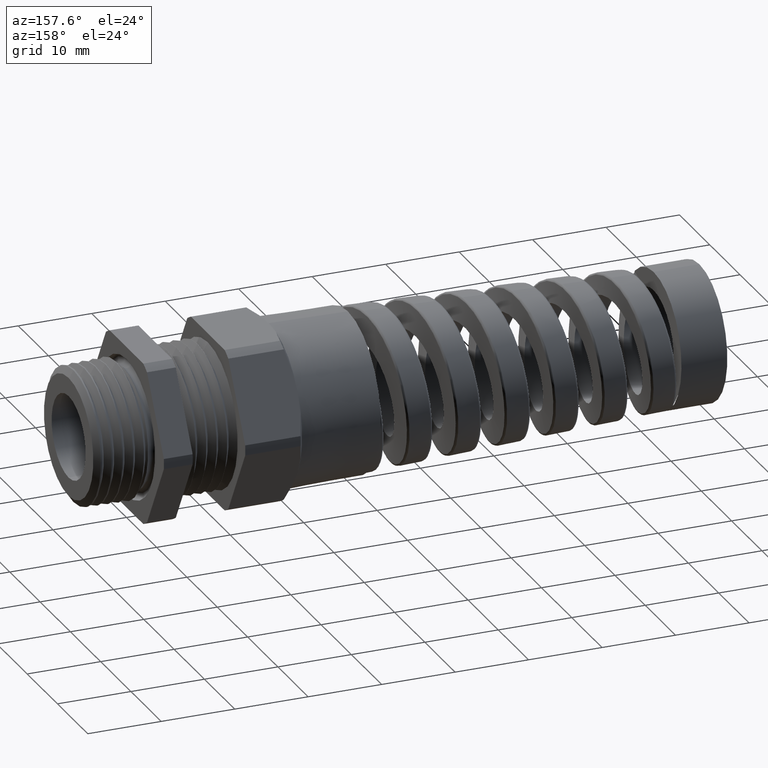
[diagram: clean part render]
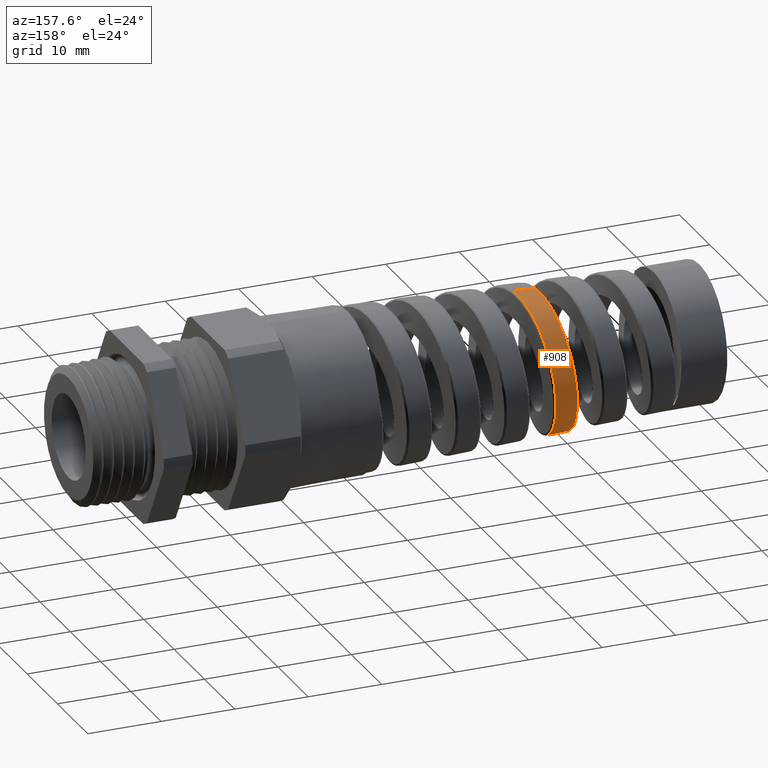
[diagram: same view with one face highlighted and labeled with its STEP entity id]
A machine part, auxiliary view. The second image highlights one B-rep face of the part: STEP entity #908.
In plain terms, the highlighted conical surface has half-angle 2.001 deg.
Its self-contained STEP definition (entity closure, byte-faithful):
#849 = EDGE_CURVE ( 'NONE', #896, #890, #2699, .T. ) ;
#850 = ORIENTED_EDGE ( 'NONE', *, *, #849, .T. ) ;
#870 = ORIENTED_EDGE ( 'NONE', *, *, #959, .F. ) ;
#890 = VERTEX_POINT ( 'NONE', #2846 ) ;
#896 = VERTEX_POINT ( 'NONE', #2843 ) ;
#897 = VERTEX_POINT ( 'NONE', #2842 ) ;
#899 = EDGE_CURVE ( 'NONE', #897, #896, #2954, .T. ) ;
#900 = ORIENTED_EDGE ( 'NONE', *, *, #902, .T. ) ;
#902 = EDGE_CURVE ( 'NONE', #903, #897, #2949, .T. ) ;
#903 = VERTEX_POINT ( 'NONE', #2950 ) ;
#905 = EDGE_LOOP ( 'NONE', ( #900, #906, #850, #870 ) ) ;
#906 = ORIENTED_EDGE ( 'NONE', *, *, #899, .T. ) ;
#908 = ADVANCED_FACE ( 'NONE', ( #2975 ), #2973, .T. ) ;
#959 = EDGE_CURVE ( 'NONE', #903, #890, #3322, .T. ) ;
#2679 = CARTESIAN_POINT ( 'NONE',  ( -2.121007796116298700, 0.3623087092068006900, 0.1381529577821191100 ) ) ;
#2680 = CARTESIAN_POINT ( 'NONE',  ( -2.116835432829257300, 0.3476543448961542100, 0.1734662431245847000 ) ) ;
#2681 = CARTESIAN_POINT ( 'NONE',  ( -2.114101119311537800, 0.3357250650330258500, 0.1957147596749278200 ) ) ;
#2682 = CARTESIAN_POINT ( 'NONE',  ( -2.109987203026395100, 0.3146917584746945500, 0.2271966723564998500 ) ) ;
#2683 = CARTESIAN_POINT ( 'NONE',  ( -2.108613653278699200, 0.3071537231754339900, 0.2373732500272804100 ) ) ;
#2684 = CARTESIAN_POINT ( 'NONE',  ( -2.105847040126177300, 0.2909951916960203900, 0.2570724937586757500 ) ) ;
#2685 = CARTESIAN_POINT ( 'NONE',  ( -2.104458460010300700, 0.2823954557052271700, 0.2665576844774127900 ) ) ;
#2686 = CARTESIAN_POINT ( 'NONE',  ( -2.100331283785412200, 0.2555327353306780000, 0.2934215898715395500 ) ) ;
#2687 = CARTESIAN_POINT ( 'NONE',  ( -2.097601851149142800, 0.2360523390537655500, 0.3094302028418458600 ) ) ;
#2688 = CARTESIAN_POINT ( 'NONE',  ( -2.093464130453706100, 0.2044792847250668500, 0.3305855466419839700 ) ) ;
#2689 = CARTESIAN_POINT ( 'NONE',  ( -2.092070176233148600, 0.1934975810188342400, 0.3371894019435693900 ) ) ;
#2690 = CARTESIAN_POINT ( 'NONE',  ( -2.089298822321016500, 0.1710559708426935800, 0.3492178418263165400 ) ) ;
#2691 = CARTESIAN_POINT ( 'NONE',  ( -2.087923819202658600, 0.1596173772018635900, 0.3546406859041521500 ) ) ;
#2692 = CARTESIAN_POINT ( 'NONE',  ( -2.083814437623425300, 0.1246671767106515400, 0.3691816318164830000 ) ) ;
#2693 = CARTESIAN_POINT ( 'NONE',  ( -2.081092583231444900, 0.1005274209826709000, 0.3765882877703819500 ) ) ;
#2694 = CARTESIAN_POINT ( 'NONE',  ( -2.076949348673752900, 0.06302813484859258500, 0.3841571769480763800 ) ) ;
#2695 = CARTESIAN_POINT ( 'NONE',  ( -2.075566717704021300, 0.05038979257522601500, 0.3860638650458663700 ) ) ;
#2696 = CARTESIAN_POINT ( 'NONE',  ( -2.072823917405715000, 0.02520647288547393100, 0.3886176109629270200 ) ) ;
#2697 = CARTESIAN_POINT ( 'NONE',  ( -2.071457720922029300, 0.01260682436461403400, 0.3892762368197000300 ) ) ;
#2698 = CARTESIAN_POINT ( 'NONE',  ( -2.070090085025433800, 5.533988843946447800E-017, 0.3893240102953847100 ) ) ;
#2699 = B_SPLINE_CURVE_WITH_KNOTS ( 'NONE', 3,
 ( #2698, #2697, #2696, #2695, #2694, #2693, #2692, #2691, #2690, #2689, #2688, #2687, #2686, #2685, #2684, #2683, #2682, #2681, #2680, #2679, #2752, #2751, #2750, #2749, #2748, #2747, #2746, #2745, #2744, #2743, #2742, #2741, #2740, #2739, #2738, #2737, #2736, #2735, #2734, #2733, #2732, #2731, #2730, #2729, #2728, #2727, #2726 ),
 .UNSPECIFIED., .F., .F.,
 ( 4, 2, 2, 2, 2, 2, 2, 2, 2, 2, 2, 1, 2, 2, 2, 2, 2, 2, 2, 2, 2, 2, 2, 4 ),
 ( 0.2183615001492772700, 0.2193405632607374500, 0.2203196263721976200, 0.2222777525951180100, 0.2232568157065781800, 0.2242358788180383900, 0.2261940050409587400, 0.2271730681524189400, 0.2281521312638791200, 0.2301102574867995000, 0.2310893205982596800, 0.2320683837097198600, 0.2330474468211800600, 0.2340265099326402400, 0.2359846361555605900, 0.2379427623784809700, 0.2399008886014013500, 0.2408799517128615300, 0.2418590148243217100, 0.2438171410472420900, 0.2457752672701624700, 0.2467543303816226700, 0.2477333934930828500, 0.2496915197160032300 ),
 .UNSPECIFIED. ) ;
#2726 = CARTESIAN_POINT ( 'NONE',  ( -2.202683457276038300, -3.405459396889542900E-013, -0.3846923343786152700 ) ) ;
#2727 = CARTESIAN_POINT ( 'NONE',  ( -2.199906919341994900, 0.02529623146615800300, -0.3847893228152603500 ) ) ;
#2728 = CARTESIAN_POINT ( 'NONE',  ( -2.197159951830103700, 0.05040176815900610600, -0.3824138780841269700 ) ) ;
#2729 = CARTESIAN_POINT ( 'NONE',  ( -2.192993814141670100, 0.08776157997800400300, -0.3751101658184624600 ) ) ;
#2730 = CARTESIAN_POINT ( 'NONE',  ( -2.191590558121293300, 0.1002244638179090200, -0.3720254397682061800 ) ) ;
#2731 = CARTESIAN_POINT ( 'NONE',  ( -2.188808938976997400, 0.1245554278210081500, -0.3647035221970916200 ) ) ;
#2732 = CARTESIAN_POINT ( 'NONE',  ( -2.187426045180525000, 0.1364655859303760500, -0.3604645604428534700 ) ) ;
#2733 = CARTESIAN_POINT ( 'NONE',  ( -2.183279919407326500, 0.1714450694785812100, -0.3460532123659695900 ) ) ;
#2734 = CARTESIAN_POINT ( 'NONE',  ( -2.180517869155858900, 0.1937782312258876100, -0.3341979965280329500 ) ) ;
#2735 = CARTESIAN_POINT ( 'NONE',  ( -2.174907279082709100, 0.2363326728870044900, -0.3058370513499472100 ) ) ;
#2736 = CARTESIAN_POINT ( 'NONE',  ( -2.172154671987014400, 0.2558611466227371800, -0.2897948871195891200 ) ) ;
#2737 = CARTESIAN_POINT ( 'NONE',  ( -2.168021697749996900, 0.2826311098973234800, -0.2630587782747104700 ) ) ;
#2738 = CARTESIAN_POINT ( 'NONE',  ( -2.166643103638429900, 0.2911308623228793200, -0.2536980096511775600 ) ) ;
#2739 = CARTESIAN_POINT ( 'NONE',  ( -2.163868997114862600, 0.3072630398142455200, -0.2340600198969035600 ) ) ;
#2740 = CARTESIAN_POINT ( 'NONE',  ( -2.162469483858605400, 0.3149103250246781400, -0.2237484906889795600 ) ) ;
#2741 = CARTESIAN_POINT ( 'NONE',  ( -2.158313421199364400, 0.3360451959211012100, -0.1920950780108038900 ) ) ;
#2742 = CARTESIAN_POINT ( 'NONE',  ( -2.155570030507503600, 0.3479199896903508700, -0.1698492316812819100 ) ) ;
#2743 = CARTESIAN_POINT ( 'NONE',  ( -2.150033189777715400, 0.3672768691759731900, -0.1231026507031093800 ) ) ;
#2744 = CARTESIAN_POINT ( 'NONE',  ( -2.147223107023634300, 0.3747417191747880500, -0.09843268277804621800 ) ) ;
#2745 = CARTESIAN_POINT ( 'NONE',  ( -2.141710242936691400, 0.3845514931099246500, -0.04888193547934606400 ) ) ;
#2746 = CARTESIAN_POINT ( 'NONE',  ( -2.138975992232096300, 0.3870244266514903900, -0.02377051004037910400 ) ) ;
#2747 = CARTESIAN_POINT ( 'NONE',  ( -2.134820160245313400, 0.3870040901070435600, 0.01440222295882379400 ) ) ;
#2748 = CARTESIAN_POINT ( 'NONE',  ( -2.133425766790454100, 0.3863620436878766300, 0.02720994961133294300 ) ) ;
#2749 = CARTESIAN_POINT ( 'NONE',  ( -2.130665058121026200, 0.3838509291286801300, 0.05243230176077876700 ) ) ;
#2750 = CARTESIAN_POINT ( 'NONE',  ( -2.127916892151466800, 0.3801169990298662300, 0.07740473070253682500 ) ) ;
#2751 = CARTESIAN_POINT ( 'NONE',  ( -2.125166590744362000, 0.3739773533698060900, 0.1018824723877488800 ) ) ;
#2752 = CARTESIAN_POINT ( 'NONE',  ( -2.122403013483349800, 0.3666204304557854600, 0.1261085412957071400 ) ) ;
#2842 = CARTESIAN_POINT ( 'NONE',  ( -2.187349891809634400, 9.172188643361015600E-017, 0.3852279577260230300 ) ) ;
#2843 = CARTESIAN_POINT ( 'NONE',  ( -2.070090085025433800, 5.533988843946447800E-017, 0.3893240102953847100 ) ) ;
#2846 = CARTESIAN_POINT ( 'NONE',  ( -2.202683457276038300, -3.405459396889542900E-013, -0.3846923343786152700 ) ) ;
#2918 = CARTESIAN_POINT ( 'NONE',  ( -2.238249008020783300, 0.3583860276218772100, 0.1369268123587162600 ) ) ;
#2919 = CARTESIAN_POINT ( 'NONE',  ( -2.239621015084206400, 0.3626146477308959700, 0.1251618290796165400 ) ) ;
#2920 = CARTESIAN_POINT ( 'NONE',  ( -2.242382899915287700, 0.3699362042736363300, 0.1011340775561398900 ) ) ;
#2921 = CARTESIAN_POINT ( 'NONE',  ( -2.243779070086905100, 0.3730357442903293700, 0.08881427599902543000 ) ) ;
#2922 = CARTESIAN_POINT ( 'NONE',  ( -2.247930777909032500, 0.3804176347829828500, 0.05185085531633890100 ) ) ;
#2923 = CARTESIAN_POINT ( 'NONE',  ( -2.250672060648293700, 0.3828792566222771200, 0.02702159496535459400 ) ) ;
#2925 = CARTESIAN_POINT ( 'NONE',  ( -2.256196342007373200, 0.3829492368191012000, -0.02299541264511470800 ) ) ;
#2926 = CARTESIAN_POINT ( 'NONE',  ( -2.258997134375645600, 0.3804769304227393900, -0.04838443764579038200 ) ) ;
#2927 = CARTESIAN_POINT ( 'NONE',  ( -2.264505984289725500, 0.3707591820989330500, -0.09743776040912872900 ) ) ;
#2928 = CARTESIAN_POINT ( 'NONE',  ( -2.267239855022918700, 0.3635515195909331800, -0.1213285803724920800 ) ) ;
#2929 = CARTESIAN_POINT ( 'NONE',  ( -2.271397567391547400, 0.3491582117574414400, -0.1561850496895193800 ) ) ;
#2930 = CARTESIAN_POINT ( 'NONE',  ( -2.272797343486493200, 0.3437350475596781000, -0.1676711788217255300 ) ) ;
#2931 = CARTESIAN_POINT ( 'NONE',  ( -2.275570176183664600, 0.3319079512724919500, -0.1898169671201647400 ) ) ;
#2932 = CARTESIAN_POINT ( 'NONE',  ( -2.276950229024547600, 0.3254833368088970200, -0.2005370723217338400 ) ) ;
#2933 = CARTESIAN_POINT ( 'NONE',  ( -2.281090427446276400, 0.3047060227586944600, -0.2316570069715960800 ) ) ;
#2934 = CARTESIAN_POINT ( 'NONE',  ( -2.283860068501595300, 0.2888073454111744200, -0.2510835705112117200 ) ) ;
#2935 = CARTESIAN_POINT ( 'NONE',  ( -2.289446367321919900, 0.2530778218872409300, -0.2868017908555272100 ) ) ;
#2936 = CARTESIAN_POINT ( 'NONE',  ( -2.292191411721520700, 0.2337368349562094200, -0.3026259446662248300 ) ) ;
#2937 = CARTESIAN_POINT ( 'NONE',  ( -2.296326326669651000, 0.2025948230994694100, -0.3234088117321025100 ) ) ;
#2938 = CARTESIAN_POINT ( 'NONE',  ( -2.297707405434197700, 0.1918564791854235600, -0.3298406501433743300 ) ) ;
#2939 = CARTESIAN_POINT ( 'NONE',  ( -2.300490096768794700, 0.1696472850312157900, -0.3416861567696454200 ) ) ;
#2940 = CARTESIAN_POINT ( 'NONE',  ( -2.301892490490941200, 0.1581665337703373500, -0.3470943481743208900 ) ) ;
#2941 = CARTESIAN_POINT ( 'NONE',  ( -2.306058925903342600, 0.1233831778417040500, -0.3614256960898015200 ) ) ;
#2942 = CARTESIAN_POINT ( 'NONE',  ( -2.308814453290735500, 0.09949771971333720700, -0.3686150201672677700 ) ) ;
#2943 = CARTESIAN_POINT ( 'NONE',  ( -2.312985525024160000, 0.06263593678793252800, -0.3758618641786425900 ) ) ;
#2944 = CARTESIAN_POINT ( 'NONE',  ( -2.314388637062264400, 0.05011453666795009200, -0.3776887777737542600 ) ) ;
#2945 = CARTESIAN_POINT ( 'NONE',  ( -2.317184161475216900, 0.02500751926164493000, -0.3800796542100964300 ) ) ;
#2946 = CARTESIAN_POINT ( 'NONE',  ( -2.318570726488935900, 0.01248722768451801200, -0.3806442265074205200 ) ) ;
#2947 = CARTESIAN_POINT ( 'NONE',  ( -2.319953535835627800, 5.445844450144926100E-013, -0.3805959230014648900 ) ) ;
#2949 = B_SPLINE_CURVE_WITH_KNOTS ( 'NONE', 3,
 ( #2947, #2946, #2945, #2944, #2943, #2942, #2941, #2940, #2939, #2938, #2937, #2936, #2935, #2934, #2933, #2932, #2931, #2930, #2929, #2928, #2927, #2926, #2925, #2923, #2922, #2921, #2920, #2919, #2918, #2992, #2990, #2989, #2987, #2986, #2985, #2984, #2983, #2982, #2981, #2980, #2979, #2978, #2977, #2976 ),
 .UNSPECIFIED., .F., .F.,
 ( 4, 2, 2, 2, 2, 2, 2, 2, 2, 2, 2, 2, 2, 2, 2, 2, 2, 2, 2, 2, 2, 4 ),
 ( 0.1143141814383814700, 0.1152812253294749600, 0.1162482692205684500, 0.1181823570027554400, 0.1191494008938489300, 0.1201164447849424200, 0.1220505325671293900, 0.1239846203493163700, 0.1249516642404098600, 0.1259187081315033500, 0.1278527959136903400, 0.1297868836958773200, 0.1317209714780643300, 0.1326880153691578100, 0.1336550592602513100, 0.1355891470424383000, 0.1375232348246252800, 0.1384902787157187600, 0.1394573226068122600, 0.1413914103889992400, 0.1433254981711862300, 0.1452595859533732100 ),
 .UNSPECIFIED. ) ;
#2950 = CARTESIAN_POINT ( 'NONE',  ( -2.319953535835627800, 5.445844450144926100E-013, -0.3805959230014648900 ) ) ;
#2951 = DIRECTION ( 'NONE',  ( 0.9993904554178625300, 4.275258673359081200E-018, 0.03491013634572582400 ) ) ;
#2952 = VECTOR ( 'NONE', #2951, 39.37007874015748900 ) ;
#2953 = CARTESIAN_POINT ( 'NONE',  ( -0.7624999999999998400, 5.327213576290987000E-017, 0.4350000000000000500 ) ) ;
#2954 = LINE ( 'NONE', #2953, #2952 ) ;
#2970 = DIRECTION ( 'NONE',  ( 0.0000000000000000000, 0.0000000000000000000, -1.000000000000000000 ) ) ;
#2971 = DIRECTION ( 'NONE',  ( 1.000000000000000000, 0.0000000000000000000, 0.0000000000000000000 ) ) ;
#2972 = AXIS2_PLACEMENT_3D ( 'NONE', #2974, #2971, #2970 ) ;
#2973 = CONICAL_SURFACE ( 'NONE', #2972, 0.4350000000000000500, 0.03491723117042448000 ) ;
#2974 = CARTESIAN_POINT ( 'NONE',  ( -0.7624999999999998400, 0.0000000000000000000, 0.0000000000000000000 ) ) ;
#2975 = FACE_OUTER_BOUND ( 'NONE', #905, .T. ) ;
#2976 = CARTESIAN_POINT ( 'NONE',  ( -2.187349891809634400, 9.172188643361015600E-017, 0.3852279577260230300 ) ) ;
#2977 = CARTESIAN_POINT ( 'NONE',  ( -2.190106523131418300, 0.02516067831715862800, 0.3851316646558063400 ) ) ;
#2978 = CARTESIAN_POINT ( 'NONE',  ( -2.192834200964487200, 0.04999010877378470100, 0.3825944698100346400 ) ) ;
#2979 = CARTESIAN_POINT ( 'NONE',  ( -2.198325696726914000, 0.09898918912926001100, 0.3727344855506911600 ) ) ;
#2980 = CARTESIAN_POINT ( 'NONE',  ( -2.201111890681510400, 0.1233808769601803700, 0.3652860259781592900 ) ) ;
#2981 = CARTESIAN_POINT ( 'NONE',  ( -2.206597065257826600, 0.1695879582543754500, 0.3460480367342371200 ) ) ;
#2982 = CARTESIAN_POINT ( 'NONE',  ( -2.209316006507801200, 0.1915812169836228800, 0.3342704813648712000 ) ) ;
#2983 = CARTESIAN_POINT ( 'NONE',  ( -2.213445188710366600, 0.2228805537530938700, 0.3133383069330752400 ) ) ;
#2984 = CARTESIAN_POINT ( 'NONE',  ( -2.214837285572199400, 0.2330785047048026500, 0.3057682714448655100 ) ) ;
#2985 = CARTESIAN_POINT ( 'NONE',  ( -2.217599717467379600, 0.2525076168328181400, 0.2898026527808302300 ) ) ;
#2986 = CARTESIAN_POINT ( 'NONE',  ( -2.218973701422832300, 0.2617704917572349400, 0.2813940108826172300 ) ) ;
#2987 = CARTESIAN_POINT ( 'NONE',  ( -2.223093107357640100, 0.2882330529927558100, 0.2549207448617958900 ) ) ;
#2989 = CARTESIAN_POINT ( 'NONE',  ( -2.225836542494532600, 0.3041193990038538200, 0.2356208294661494600 ) ) ;
#2990 = CARTESIAN_POINT ( 'NONE',  ( -2.231399943688944900, 0.3322330572695554900, 0.1935918685515672400 ) ) ;
#2992 = CARTESIAN_POINT ( 'NONE',  ( -2.234137837573959100, 0.3440323945832279300, 0.1714881742756155200 ) ) ;
#3319 = DIRECTION ( 'NONE',  ( 0.9993904554178625300, 0.0000000000000000000, -0.03491013634572582400 ) ) ;
#3320 = VECTOR ( 'NONE', #3319, 39.37007874015748900 ) ;
#3321 = CARTESIAN_POINT ( 'NONE',  ( -0.7624999999999998400, 0.0000000000000000000, -0.4350000000000000500 ) ) ;
#3322 = LINE ( 'NONE', #3321, #3320 ) ;